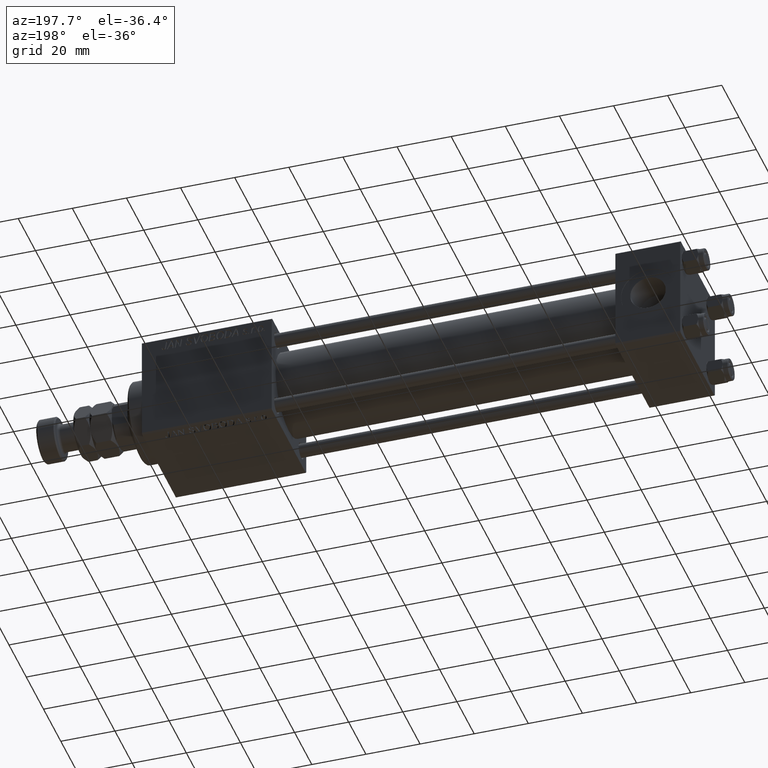
[diagram: clean part render]
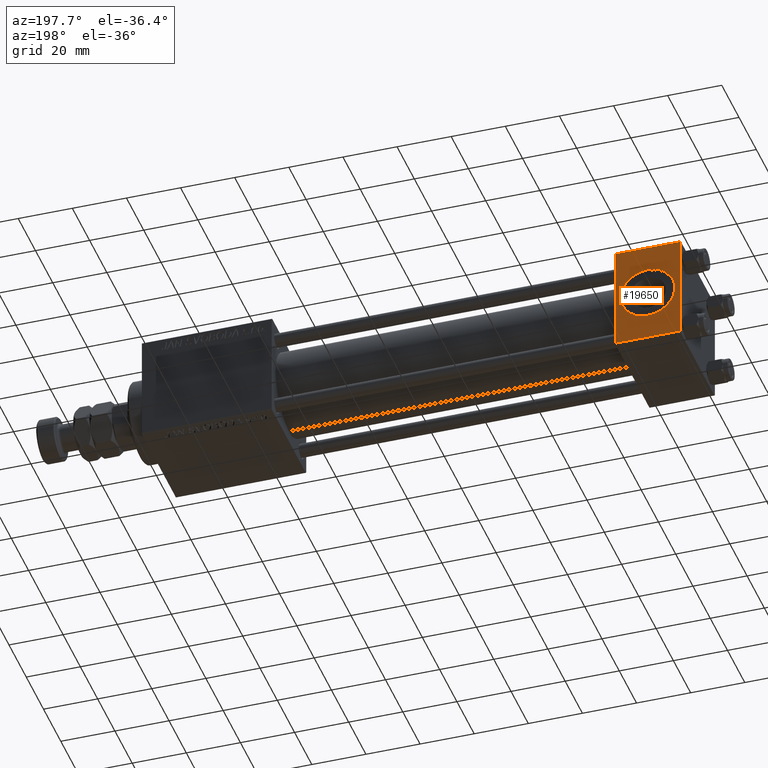
[diagram: same view with one face highlighted and labeled with its STEP entity id]
A machine part, auxiliary view. The second image highlights one B-rep face of the part: STEP entity #19650.
In plain terms, the highlighted planar face has unit normal (0, 1, 0).
Its self-contained STEP definition (entity closure, byte-faithful):
#8 = CARTESIAN_POINT ( 'NONE',  ( 0.000000000000000000, 20.00000000000000000, 19.49999999999999289 ) ) ;
#672 = VECTOR ( 'NONE', #40975, 1000.000000000000000 ) ;
#1889 = LINE ( 'NONE', #18420, #33322 ) ;
#2567 = CARTESIAN_POINT ( 'NONE',  ( 12.00000000000000000, 20.00000000000000000, 0.000000000000000000 ) ) ;
#3436 = EDGE_CURVE ( 'NONE', #43731, #42481, #18468, .T. ) ;
#5359 = VECTOR ( 'NONE', #49083, 1000.000000000000000 ) ;
#5500 = CIRCLE ( 'NONE', #35764, 10.00000000000000000 ) ;
#6053 = ORIENTED_EDGE ( 'NONE', *, *, #46957, .F. ) ;
#6943 = FACE_BOUND ( 'NONE', #16268, .T. ) ;
#7412 = LINE ( 'NONE', #7949, #5359 ) ;
#7949 = CARTESIAN_POINT ( 'NONE',  ( 24.00000000000000000, 20.00000000000000000, -19.50000000000002132 ) ) ;
#9808 = DIRECTION ( 'NONE',  ( 1.000000000000000000, 0.000000000000000000, 0.000000000000000000 ) ) ;
#10126 = VERTEX_POINT ( 'NONE', #40078 ) ;
#11169 = CARTESIAN_POINT ( 'NONE',  ( 12.00000000000000000, 20.00000000000000000, 10.00000000000000000 ) ) ;
#11490 = LINE ( 'NONE', #36627, #672 ) ;
#11763 = CARTESIAN_POINT ( 'NONE',  ( 24.00000000000000000, 20.00000000000000000, 19.49999999999999289 ) ) ;
#11962 = EDGE_CURVE ( 'NONE', #10126, #43006, #7412, .T. ) ;
#12818 = AXIS2_PLACEMENT_3D ( 'NONE', #2567, #40197, #22876 ) ;
#16268 = EDGE_LOOP ( 'NONE', ( #29186, #26602 ) ) ;
#17244 = VECTOR ( 'NONE', #9808, 1000.000000000000000 ) ;
#17825 = CARTESIAN_POINT ( 'NONE',  ( 0.000000000000000000, 20.00000000000000000, -19.50000000000002132 ) ) ;
#18420 = CARTESIAN_POINT ( 'NONE',  ( 0.000000000000000000, 20.00000000000000000, 20.00000000000000000 ) ) ;
#18468 = LINE ( 'NONE', #43372, #17244 ) ;
#19650 = ADVANCED_FACE ( 'NONE', ( #6943, #27507 ), #31558, .T. ) ;
#21017 = VERTEX_POINT ( 'NONE', #11169 ) ;
#22876 = DIRECTION ( 'NONE',  ( 0.000000000000000000, 0.000000000000000000, 1.000000000000000000 ) ) ;
#25090 = CARTESIAN_POINT ( 'NONE',  ( 12.00000000000000178, 20.00000000000000000, -10.00000000000000000 ) ) ;
#26201 = VERTEX_POINT ( 'NONE', #25090 ) ;
#26602 = ORIENTED_EDGE ( 'NONE', *, *, #27767, .F. ) ;
#27507 = FACE_OUTER_BOUND ( 'NONE', #52456, .T. ) ;
#27767 = EDGE_CURVE ( 'NONE', #26201, #21017, #45659, .T. ) ;
#29186 = ORIENTED_EDGE ( 'NONE', *, *, #42551, .F. ) ;
#29318 = DIRECTION ( 'NONE',  ( 0.000000000000000000, 0.000000000000000000, 1.000000000000000000 ) ) ;
#31558 = PLANE ( 'NONE',  #50650 ) ;
#31830 = DIRECTION ( 'NONE',  ( -0.000000000000000000, 1.000000000000000000, 0.000000000000000000 ) ) ;
#33322 = VECTOR ( 'NONE', #43318, 1000.000000000000000 ) ;
#35764 = AXIS2_PLACEMENT_3D ( 'NONE', #42316, #38242, #29318 ) ;
#36192 = ORIENTED_EDGE ( 'NONE', *, *, #11962, .T. ) ;
#36627 = CARTESIAN_POINT ( 'NONE',  ( 24.00000000000000000, 20.00000000000000000, 20.00000000000000000 ) ) ;
#38242 = DIRECTION ( 'NONE',  ( 0.000000000000000000, 1.000000000000000000, 0.000000000000000000 ) ) ;
#40078 = CARTESIAN_POINT ( 'NONE',  ( 24.00000000000000000, 20.00000000000000000, -19.50000000000002132 ) ) ;
#40197 = DIRECTION ( 'NONE',  ( 0.000000000000000000, 1.000000000000000000, 0.000000000000000000 ) ) ;
#40222 = CARTESIAN_POINT ( 'NONE',  ( 24.00000000000000000, 20.00000000000000000, 20.00000000000000000 ) ) ;
#40975 = DIRECTION ( 'NONE',  ( 0.000000000000000000, 0.000000000000000000, -1.000000000000000000 ) ) ;
#42316 = CARTESIAN_POINT ( 'NONE',  ( 12.00000000000000000, 20.00000000000000000, 0.000000000000000000 ) ) ;
#42481 = VERTEX_POINT ( 'NONE', #11763 ) ;
#42551 = EDGE_CURVE ( 'NONE', #21017, #26201, #5500, .T. ) ;
#43006 = VERTEX_POINT ( 'NONE', #17825 ) ;
#43318 = DIRECTION ( 'NONE',  ( 0.000000000000000000, 0.000000000000000000, -1.000000000000000000 ) ) ;
#43372 = CARTESIAN_POINT ( 'NONE',  ( 24.00000000000000000, 20.00000000000000000, 19.49999999999999289 ) ) ;
#43496 = DIRECTION ( 'NONE',  ( 0.000000000000000000, -0.000000000000000000, 1.000000000000000000 ) ) ;
#43731 = VERTEX_POINT ( 'NONE', #8 ) ;
#45659 = CIRCLE ( 'NONE', #12818, 10.00000000000000000 ) ;
#46957 = EDGE_CURVE ( 'NONE', #43731, #43006, #1889, .T. ) ;
#47199 = ORIENTED_EDGE ( 'NONE', *, *, #3436, .T. ) ;
#49083 = DIRECTION ( 'NONE',  ( -1.000000000000000000, 0.000000000000000000, 0.000000000000000000 ) ) ;
#49903 = ORIENTED_EDGE ( 'NONE', *, *, #52649, .T. ) ;
#50650 = AXIS2_PLACEMENT_3D ( 'NONE', #40222, #31830, #43496 ) ;
#52456 = EDGE_LOOP ( 'NONE', ( #49903, #36192, #6053, #47199 ) ) ;
#52649 = EDGE_CURVE ( 'NONE', #42481, #10126, #11490, .T. ) ;